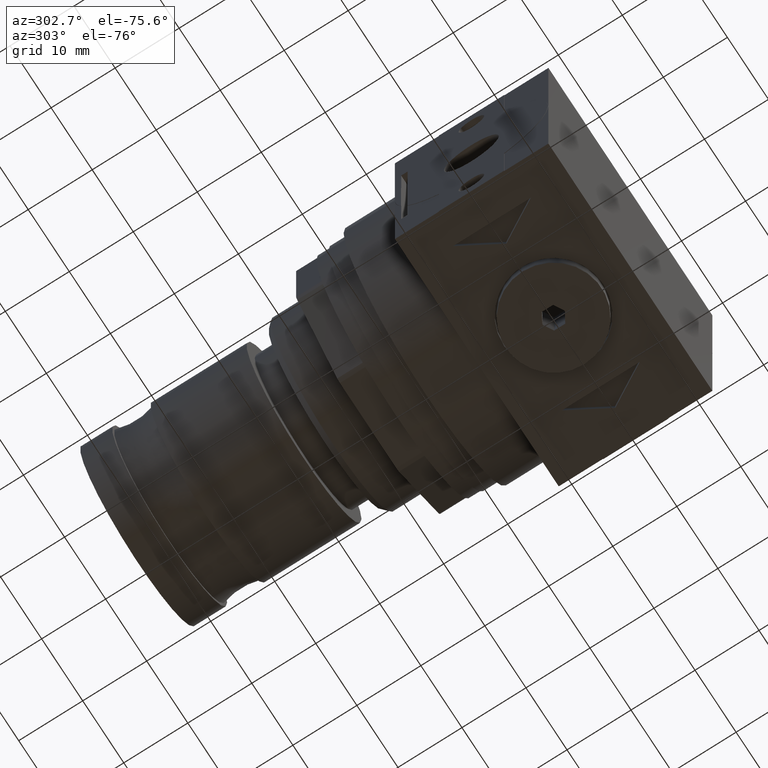
[diagram: clean part render]
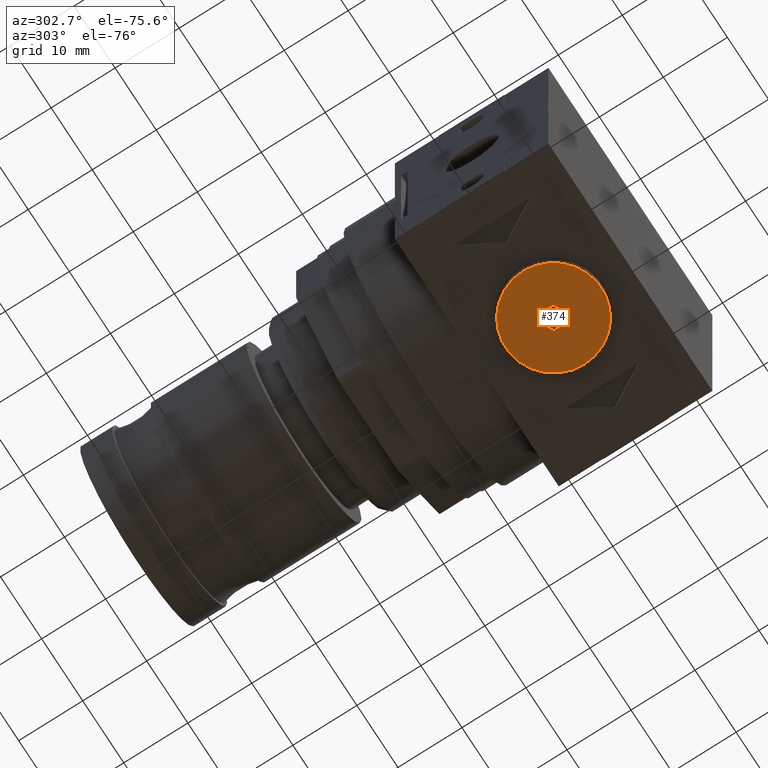
[diagram: same view with one face highlighted and labeled with its STEP entity id]
A machine part, auxiliary view. The second image highlights one B-rep face of the part: STEP entity #374.
In plain terms, the highlighted planar face has unit normal (0, 0, 1).
Its self-contained STEP definition (entity closure, byte-faithful):
#374 = ADVANCED_FACE( '', ( #778, #779 ), #780, .F. );
#778 = FACE_OUTER_BOUND( '', #1223, .T. );
#779 = FACE_BOUND( '', #1224, .T. );
#780 = PLANE( '', #1225 );
#1223 = EDGE_LOOP( '', ( #2041 ) );
#1224 = EDGE_LOOP( '', ( #2042, #2043, #2044, #2045, #2046, #2047 ) );
#1225 = AXIS2_PLACEMENT_3D( '', #2048, #2049, #2050 );
#2041 = ORIENTED_EDGE( '', *, *, #2439, .F. );
#2042 = ORIENTED_EDGE( '', *, *, #2659, .F. );
#2043 = ORIENTED_EDGE( '', *, *, #2511, .F. );
#2044 = ORIENTED_EDGE( '', *, *, #2732, .F. );
#2045 = ORIENTED_EDGE( '', *, *, #2547, .F. );
#2046 = ORIENTED_EDGE( '', *, *, #2477, .F. );
#2047 = ORIENTED_EDGE( '', *, *, #2733, .F. );
#2048 = CARTESIAN_POINT( '', ( -2.50000000000000, 0.000000000000000, 0.000000000000000 ) );
#2049 = DIRECTION( '', ( 1.00000000000000, 0.000000000000000, -0.000000000000000 ) );
#2050 = DIRECTION( '', ( -0.000000000000000, 0.000000000000000, -1.00000000000000 ) );
#2439 = EDGE_CURVE( '', #2845, #2845, #2846, .T. );
#2477 = EDGE_CURVE( '', #2912, #2913, #2914, .T. );
#2511 = EDGE_CURVE( '', #2969, #2970, #2971, .T. );
#2547 = EDGE_CURVE( '', #2913, #3022, #3023, .T. );
#2659 = EDGE_CURVE( '', #2970, #3193, #3194, .T. );
#2732 = EDGE_CURVE( '', #3022, #2969, #3294, .T. );
#2733 = EDGE_CURVE( '', #3193, #2912, #3295, .T. );
#2845 = VERTEX_POINT( '', #3426 );
#2846 = CIRCLE( '', #3427, 7.50000000000000 );
#2912 = VERTEX_POINT( '', #3519 );
#2913 = VERTEX_POINT( '', #3520 );
#2914 = LINE( '', #3521, #3522 );
#2969 = VERTEX_POINT( '', #3594 );
#2970 = VERTEX_POINT( '', #3595 );
#2971 = LINE( '', #3596, #3597 );
#3022 = VERTEX_POINT( '', #3665 );
#3023 = LINE( '', #3666, #3667 );
#3193 = VERTEX_POINT( '', #3885 );
#3194 = LINE( '', #3886, #3887 );
#3294 = LINE( '', #4024, #4025 );
#3295 = LINE( '', #4026, #4027 );
#3426 = CARTESIAN_POINT( '', ( -2.50000000000000, 0.000000000000000, -7.50000000000000 ) );
#3427 = AXIS2_PLACEMENT_3D( '', #4167, #4168, #4169 );
#3519 = CARTESIAN_POINT( '', ( -2.50000000000000, 0.866025403784438, 1.50000000000000 ) );
#3520 = CARTESIAN_POINT( '', ( -2.50000000000000, 1.73205080756888, 2.16840434497101E-016 ) );
#3521 = CARTESIAN_POINT( '', ( -2.50000000000000, 0.866025403784438, 1.50000000000000 ) );
#3522 = VECTOR( '', #4202, 1000.00000000000 );
#3594 = CARTESIAN_POINT( '', ( -2.50000000000000, -0.866025403784438, -1.50000000000000 ) );
#3595 = CARTESIAN_POINT( '', ( -2.50000000000000, -1.73205080756888, -2.22044604925031E-016 ) );
#3596 = CARTESIAN_POINT( '', ( -2.50000000000000, -0.866025403784438, -1.50000000000000 ) );
#3597 = VECTOR( '', #4244, 1000.00000000000 );
#3665 = CARTESIAN_POINT( '', ( -2.50000000000000, 0.866025403784439, -1.50000000000000 ) );
#3666 = CARTESIAN_POINT( '', ( -2.50000000000000, 1.73205080756888, 2.22044604925031E-016 ) );
#3667 = VECTOR( '', #4286, 1000.00000000000 );
#3885 = CARTESIAN_POINT( '', ( -2.50000000000000, -0.866025403784439, 1.50000000000000 ) );
#3886 = CARTESIAN_POINT( '', ( -2.50000000000000, -1.73205080756888, -2.22044604925031E-016 ) );
#3887 = VECTOR( '', #4437, 1000.00000000000 );
#4024 = CARTESIAN_POINT( '', ( -2.50000000000000, 0.866025403784439, -1.50000000000000 ) );
#4025 = VECTOR( '', #4508, 1000.00000000000 );
#4026 = CARTESIAN_POINT( '', ( -2.50000000000000, -0.866025403784439, 1.50000000000000 ) );
#4027 = VECTOR( '', #4509, 1000.00000000000 );
#4167 = CARTESIAN_POINT( '', ( -2.50000000000000, 0.000000000000000, 0.000000000000000 ) );
#4168 = DIRECTION( '', ( 1.00000000000000, 0.000000000000000, -0.000000000000000 ) );
#4169 = DIRECTION( '', ( -0.000000000000000, 0.000000000000000, -1.00000000000000 ) );
#4202 = DIRECTION( '', ( 0.000000000000000, 0.500000000000000, -0.866025403784439 ) );
#4244 = DIRECTION( '', ( 0.000000000000000, -0.500000000000000, 0.866025403784439 ) );
#4286 = DIRECTION( '', ( 0.000000000000000, -0.500000000000000, -0.866025403784439 ) );
#4437 = DIRECTION( '', ( 0.000000000000000, 0.500000000000000, 0.866025403784439 ) );
#4508 = DIRECTION( '', ( 0.000000000000000, -1.00000000000000, 0.000000000000000 ) );
#4509 = DIRECTION( '', ( 0.000000000000000, 1.00000000000000, 0.000000000000000 ) );